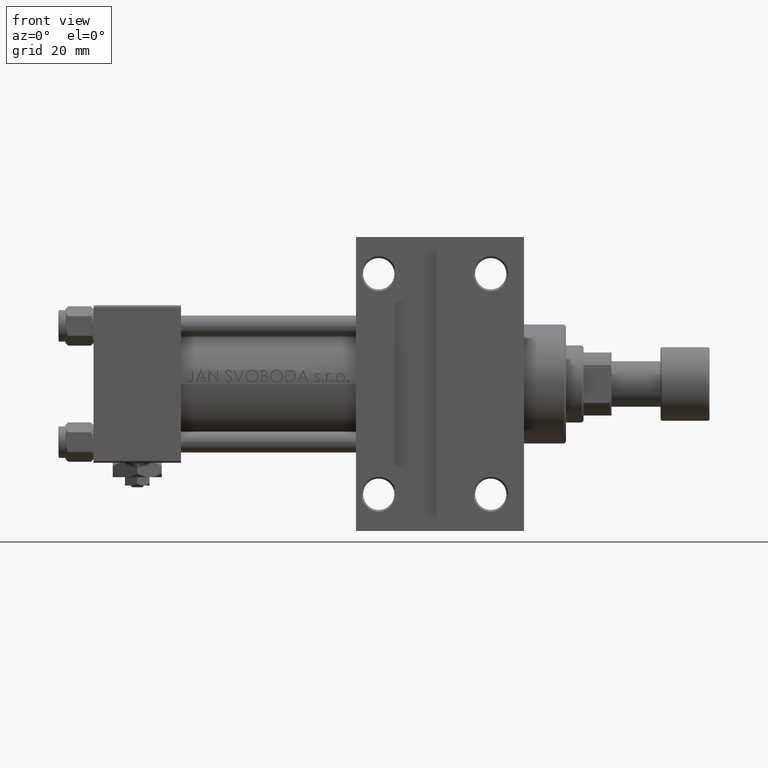
[diagram: clean part render]
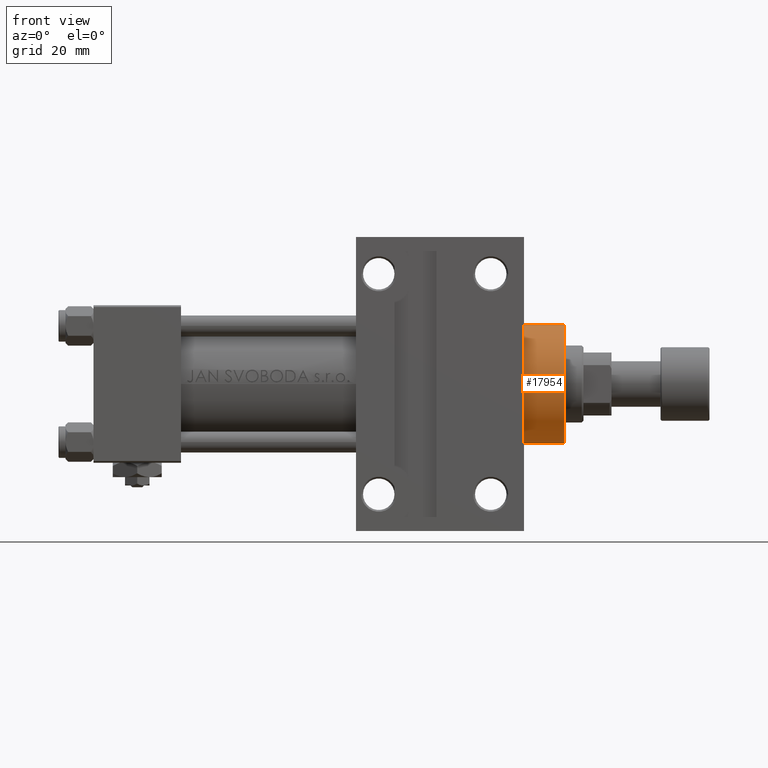
[diagram: same view with one face highlighted and labeled with its STEP entity id]
A machine part, front view. The second image highlights one B-rep face of the part: STEP entity #17954.
In plain terms, the highlighted cylindrical surface (partial cylindrical patch) has radius 17 mm, axis along (-1, 0, 0).
Its self-contained STEP definition (entity closure, byte-faithful):
#1825 = DIRECTION ( 'NONE',  ( -0.000000000000000000, -0.000000000000000000, -1.000000000000000000 ) ) ;
#2332 = CARTESIAN_POINT ( 'NONE',  ( 17.00000000000000000, 2.081899558550500280E-15, 40.70000000000000284 ) ) ;
#3826 = CARTESIAN_POINT ( 'NONE',  ( -17.00000000000000000, 0.000000000000000000, 28.69999999999999929 ) ) ;
#4531 = ORIENTED_EDGE ( 'NONE', *, *, #11551, .T. ) ;
#5854 = LINE ( 'NONE', #2332, #9470 ) ;
#6943 = VERTEX_POINT ( 'NONE', #9566 ) ;
#8118 = CARTESIAN_POINT ( 'NONE',  ( -17.00000000000000000, 0.000000000000000000, 40.70000000000000284 ) ) ;
#9470 = VECTOR ( 'NONE', #1825, 1000.000000000000000 ) ;
#9482 = ORIENTED_EDGE ( 'NONE', *, *, #21288, .T. ) ;
#9566 = CARTESIAN_POINT ( 'NONE',  ( -17.00000000000000000, 0.000000000000000000, 40.19999999999999574 ) ) ;
#10570 = AXIS2_PLACEMENT_3D ( 'NONE', #18310, #14770, #42215 ) ;
#11551 = EDGE_CURVE ( 'NONE', #36732, #39803, #5854, .T. ) ;
#12416 = VERTEX_POINT ( 'NONE', #3826 ) ;
#13221 = DIRECTION ( 'NONE',  ( 0.000000000000000000, 0.000000000000000000, -1.000000000000000000 ) ) ;
#14035 = FACE_OUTER_BOUND ( 'NONE', #33559, .T. ) ;
#14521 = CYLINDRICAL_SURFACE ( 'NONE', #10570, 17.00000000000000000 ) ;
#14770 = DIRECTION ( 'NONE',  ( -0.000000000000000000, -0.000000000000000000, -1.000000000000000000 ) ) ;
#17954 = ADVANCED_FACE ( 'NONE', ( #14035 ), #14521, .T. ) ;
#18310 = CARTESIAN_POINT ( 'NONE',  ( 0.000000000000000000, 0.000000000000000000, 40.70000000000000284 ) ) ;
#21288 = EDGE_CURVE ( 'NONE', #6943, #36732, #26744, .T. ) ;
#23472 = DIRECTION ( 'NONE',  ( -0.000000000000000000, -0.000000000000000000, -1.000000000000000000 ) ) ;
#23801 = CARTESIAN_POINT ( 'NONE',  ( 17.00000000000000000, 2.081899558550500280E-15, 28.69999999999999929 ) ) ;
#25123 = CIRCLE ( 'NONE', #42824, 17.00000000000000000 ) ;
#26744 = CIRCLE ( 'NONE', #37205, 17.00000000000000000 ) ;
#30136 = CARTESIAN_POINT ( 'NONE',  ( 17.00000000000000000, 2.081899558550500280E-15, 40.19999999999999574 ) ) ;
#32036 = VECTOR ( 'NONE', #23472, 1000.000000000000000 ) ;
#33559 = EDGE_LOOP ( 'NONE', ( #9482, #4531, #33838, #41127 ) ) ;
#33838 = ORIENTED_EDGE ( 'NONE', *, *, #43842, .T. ) ;
#35862 = EDGE_CURVE ( 'NONE', #6943, #12416, #46649, .T. ) ;
#36732 = VERTEX_POINT ( 'NONE', #30136 ) ;
#37205 = AXIS2_PLACEMENT_3D ( 'NONE', #43461, #13221, #46974 ) ;
#39803 = VERTEX_POINT ( 'NONE', #23801 ) ;
#40513 = DIRECTION ( 'NONE',  ( 0.000000000000000000, 0.000000000000000000, 1.000000000000000000 ) ) ;
#41127 = ORIENTED_EDGE ( 'NONE', *, *, #35862, .F. ) ;
#41260 = CARTESIAN_POINT ( 'NONE',  ( 0.000000000000000000, 0.000000000000000000, 28.69999999999999929 ) ) ;
#42215 = DIRECTION ( 'NONE',  ( -1.000000000000000000, 0.000000000000000000, 0.000000000000000000 ) ) ;
#42824 = AXIS2_PLACEMENT_3D ( 'NONE', #41260, #40513, #48786 ) ;
#43461 = CARTESIAN_POINT ( 'NONE',  ( 0.000000000000000000, 0.000000000000000000, 40.19999999999999574 ) ) ;
#43842 = EDGE_CURVE ( 'NONE', #39803, #12416, #25123, .T. ) ;
#46649 = LINE ( 'NONE', #8118, #32036 ) ;
#46974 = DIRECTION ( 'NONE',  ( 1.000000000000000000, 0.000000000000000000, 0.000000000000000000 ) ) ;
#48786 = DIRECTION ( 'NONE',  ( 1.000000000000000000, 0.000000000000000000, 0.000000000000000000 ) ) ;